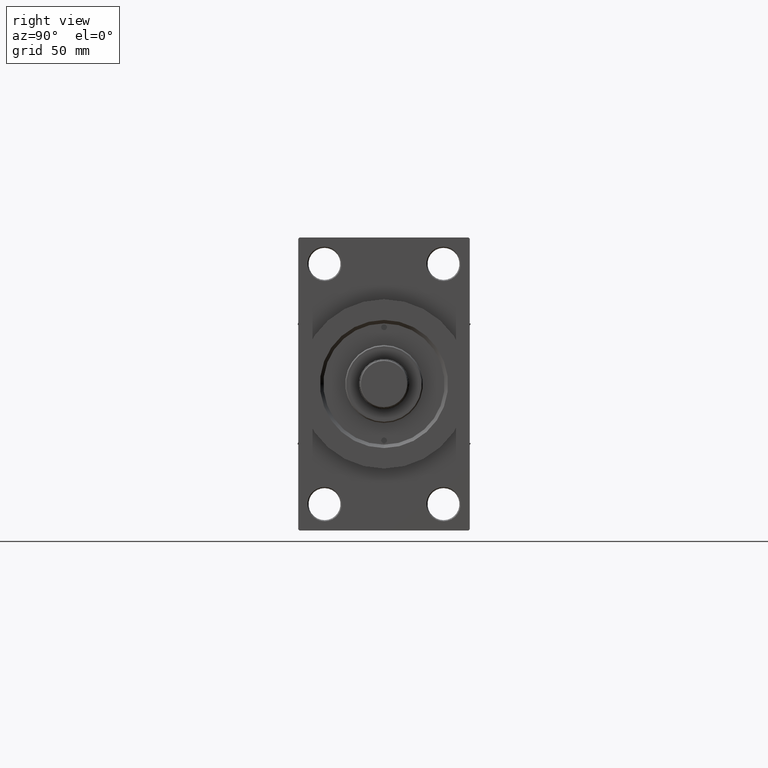
[diagram: clean part render]
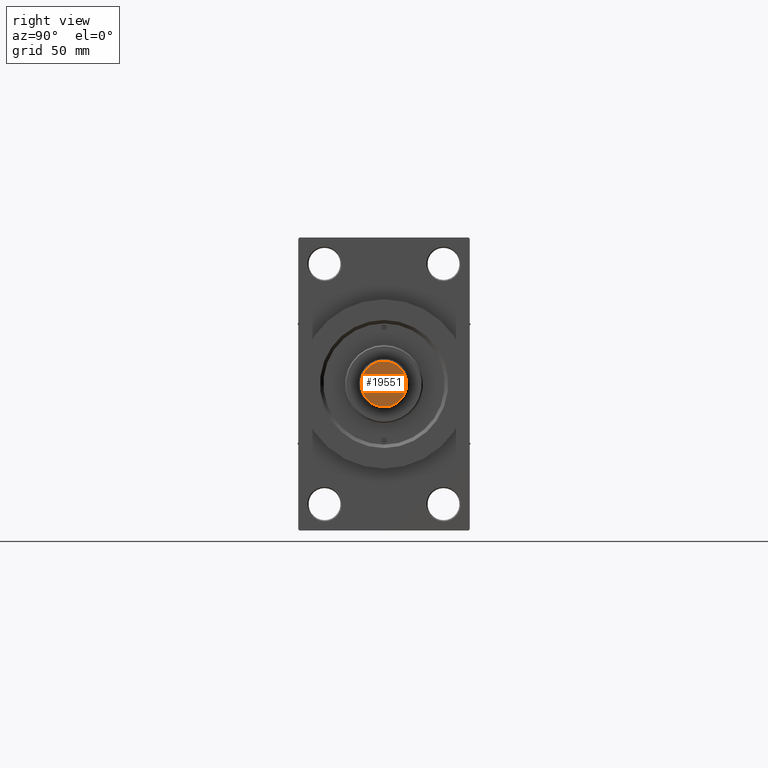
[diagram: same view with one face highlighted and labeled with its STEP entity id]
A machine part, right view. The second image highlights one B-rep face of the part: STEP entity #19551.
In plain terms, the highlighted planar face has unit normal (1, 0, 0).
Its self-contained STEP definition (entity closure, byte-faithful):
#852 = ORIENTED_EDGE ( 'NONE', *, *, #26865, .T. ) ;
#1320 = CIRCLE ( 'NONE', #12151, 10.00000000000000000 ) ;
#3919 = CARTESIAN_POINT ( 'NONE',  ( 10.00000000000000000, 0.000000000000000000, 0.000000000000000000 ) ) ;
#4062 = PLANE ( 'NONE',  #28299 ) ;
#9099 = VERTEX_POINT ( 'NONE', #3919 ) ;
#12012 = DIRECTION ( 'NONE',  ( 0.000000000000000000, 0.000000000000000000, 1.000000000000000000 ) ) ;
#12151 = AXIS2_PLACEMENT_3D ( 'NONE', #27682, #27207, #19486 ) ;
#14440 = CIRCLE ( 'NONE', #45352, 10.00000000000000000 ) ;
#16914 = ORIENTED_EDGE ( 'NONE', *, *, #20608, .T. ) ;
#18814 = DIRECTION ( 'NONE',  ( 1.000000000000000000, 0.000000000000000000, -0.000000000000000000 ) ) ;
#19486 = DIRECTION ( 'NONE',  ( 1.000000000000000000, 0.000000000000000000, 0.000000000000000000 ) ) ;
#19551 = ADVANCED_FACE ( 'NONE', ( #22434 ), #4062, .T. ) ;
#19656 = CARTESIAN_POINT ( 'NONE',  ( 0.000000000000000000, 0.000000000000000000, 0.000000000000000000 ) ) ;
#19894 = DIRECTION ( 'NONE',  ( 1.000000000000000000, 0.000000000000000000, 0.000000000000000000 ) ) ;
#20608 = EDGE_CURVE ( 'NONE', #9099, #29587, #1320, .T. ) ;
#22434 = FACE_OUTER_BOUND ( 'NONE', #29961, .T. ) ;
#23283 = DIRECTION ( 'NONE',  ( 0.000000000000000000, 0.000000000000000000, 1.000000000000000000 ) ) ;
#26865 = EDGE_CURVE ( 'NONE', #29587, #9099, #14440, .T. ) ;
#27207 = DIRECTION ( 'NONE',  ( 0.000000000000000000, 0.000000000000000000, 1.000000000000000000 ) ) ;
#27682 = CARTESIAN_POINT ( 'NONE',  ( 0.000000000000000000, 0.000000000000000000, 0.000000000000000000 ) ) ;
#28299 = AXIS2_PLACEMENT_3D ( 'NONE', #30412, #12012, #18814 ) ;
#29587 = VERTEX_POINT ( 'NONE', #32158 ) ;
#29961 = EDGE_LOOP ( 'NONE', ( #16914, #852 ) ) ;
#30412 = CARTESIAN_POINT ( 'NONE',  ( 0.000000000000000000, 0.000000000000000000, 0.000000000000000000 ) ) ;
#32158 = CARTESIAN_POINT ( 'NONE',  ( -10.00000000000000000, 1.255262969126037044E-15, 0.000000000000000000 ) ) ;
#45352 = AXIS2_PLACEMENT_3D ( 'NONE', #19656, #23283, #19894 ) ;